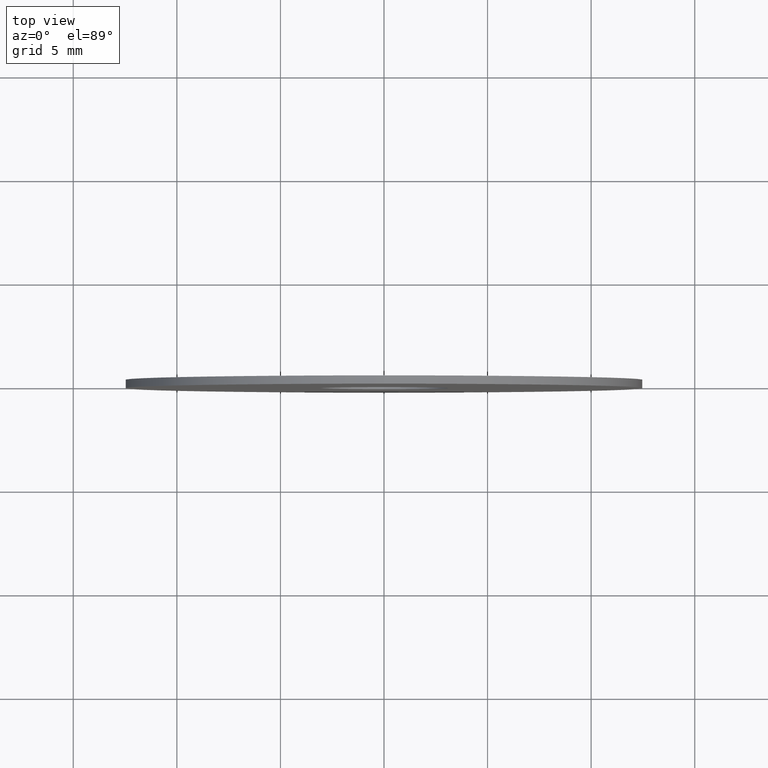
[diagram: clean part render]
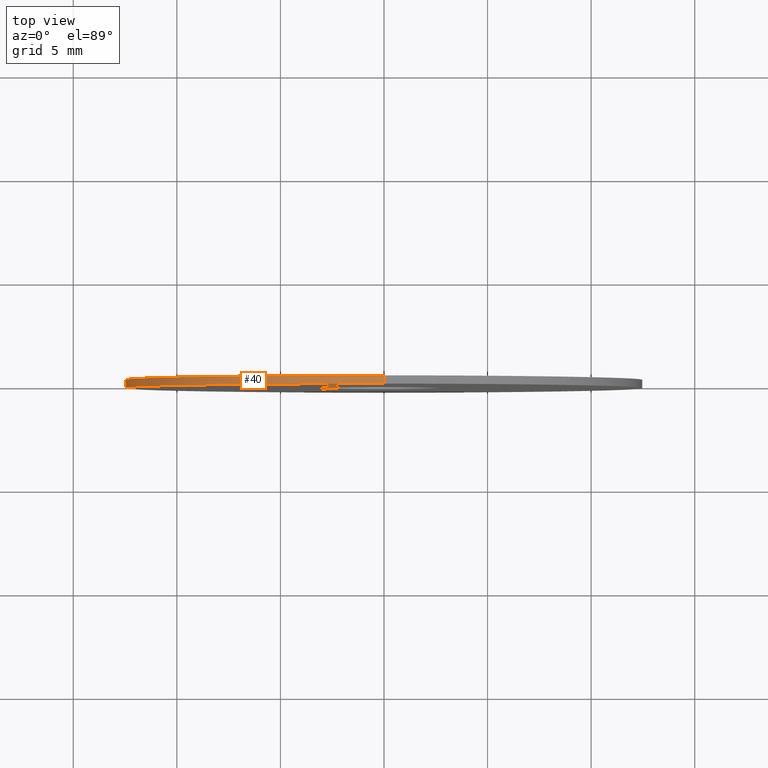
[diagram: same view with one face highlighted and labeled with its STEP entity id]
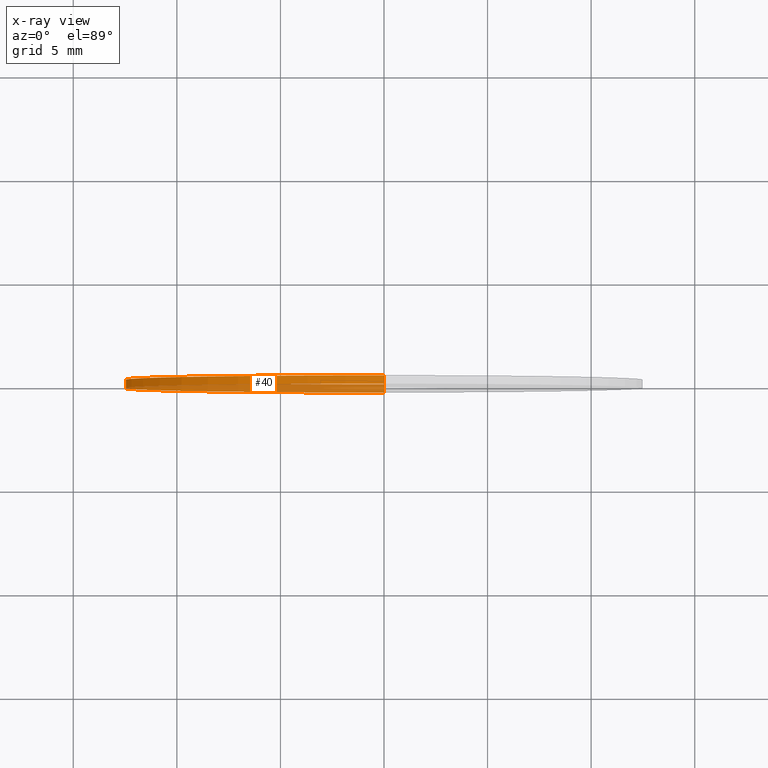
[diagram: x-ray of the same camera — body ghosted, the highlighted face saturated]
A machine part, top view. The second image highlights one B-rep face of the part: STEP entity #40.
The next image is the same camera in x-ray: the body ghosted, the highlighted face saturated — about 37% of this face is hidden behind the body in this view.
In plain terms, the highlighted cylindrical surface (partial cylindrical patch) has radius 12.5 mm, axis along (-0, -1, -0).
Its self-contained STEP definition (entity closure, byte-faithful):
#4 = AXIS2_PLACEMENT_3D ( 'NONE', #140, #214, #83 ) ;
#5 = EDGE_CURVE ( 'NONE', #135, #247, #35, .T. ) ;
#8 = DIRECTION ( 'NONE',  ( -0.000000000000000000, -1.000000000000000000, -0.000000000000000000 ) ) ;
#13 = VECTOR ( 'NONE', #154, 1000.000000000000000 ) ;
#22 = CIRCLE ( 'NONE', #4, 12.50000000000000000 ) ;
#26 = CARTESIAN_POINT ( 'NONE',  ( 1.530808498934191521E-15, 0.2000000000000000111, 12.50000000000000000 ) ) ;
#32 = CIRCLE ( 'NONE', #82, 12.50000000000000000 ) ;
#35 = LINE ( 'NONE', #157, #13 ) ;
#37 = VERTEX_POINT ( 'NONE', #93 ) ;
#39 = ORIENTED_EDGE ( 'NONE', *, *, #106, .F. ) ;
#40 = ADVANCED_FACE ( 'NONE', ( #188 ), #114, .T. ) ;
#62 = DIRECTION ( 'NONE',  ( 0.000000000000000000, 0.000000000000000000, 1.000000000000000000 ) ) ;
#72 = AXIS2_PLACEMENT_3D ( 'NONE', #76, #138, #231 ) ;
#76 = CARTESIAN_POINT ( 'NONE',  ( 0.000000000000000000, 0.2000000000000000111, 0.000000000000000000 ) ) ;
#82 = AXIS2_PLACEMENT_3D ( 'NONE', #144, #198, #62 ) ;
#83 = DIRECTION ( 'NONE',  ( 0.000000000000000000, 0.000000000000000000, 1.000000000000000000 ) ) ;
#88 = EDGE_CURVE ( 'NONE', #247, #227, #22, .T. ) ;
#93 = CARTESIAN_POINT ( 'NONE',  ( 1.530808498934191521E-15, 0.2000000000000000111, 12.50000000000000000 ) ) ;
#100 = CARTESIAN_POINT ( 'NONE',  ( 0.000000000000000000, 0.2000000000000000111, -12.50000000000000000 ) ) ;
#106 = EDGE_CURVE ( 'NONE', #135, #37, #32, .T. ) ;
#108 = EDGE_LOOP ( 'NONE', ( #187, #39, #172, #248 ) ) ;
#114 = CYLINDRICAL_SURFACE ( 'NONE', #72, 12.50000000000000000 ) ;
#135 = VERTEX_POINT ( 'NONE', #100 ) ;
#138 = DIRECTION ( 'NONE',  ( -0.000000000000000000, -1.000000000000000000, -0.000000000000000000 ) ) ;
#139 = LINE ( 'NONE', #26, #181 ) ;
#140 = CARTESIAN_POINT ( 'NONE',  ( 0.000000000000000000, -0.2000000000000000111, 0.000000000000000000 ) ) ;
#144 = CARTESIAN_POINT ( 'NONE',  ( 0.000000000000000000, 0.2000000000000000111, 0.000000000000000000 ) ) ;
#154 = DIRECTION ( 'NONE',  ( -0.000000000000000000, -1.000000000000000000, -0.000000000000000000 ) ) ;
#157 = CARTESIAN_POINT ( 'NONE',  ( 0.000000000000000000, 0.2000000000000000111, -12.50000000000000000 ) ) ;
#161 = EDGE_CURVE ( 'NONE', #37, #227, #139, .T. ) ;
#164 = CARTESIAN_POINT ( 'NONE',  ( 1.530808498934191521E-15, -0.2000000000000000111, 12.50000000000000000 ) ) ;
#172 = ORIENTED_EDGE ( 'NONE', *, *, #5, .T. ) ;
#181 = VECTOR ( 'NONE', #8, 1000.000000000000000 ) ;
#187 = ORIENTED_EDGE ( 'NONE', *, *, #161, .F. ) ;
#188 = FACE_OUTER_BOUND ( 'NONE', #108, .T. ) ;
#198 = DIRECTION ( 'NONE',  ( 0.000000000000000000, 1.000000000000000000, 0.000000000000000000 ) ) ;
#214 = DIRECTION ( 'NONE',  ( 0.000000000000000000, 1.000000000000000000, 0.000000000000000000 ) ) ;
#227 = VERTEX_POINT ( 'NONE', #164 ) ;
#231 = DIRECTION ( 'NONE',  ( 0.000000000000000000, 0.000000000000000000, -1.000000000000000000 ) ) ;
#238 = CARTESIAN_POINT ( 'NONE',  ( 0.000000000000000000, -0.2000000000000000111, -12.50000000000000000 ) ) ;
#247 = VERTEX_POINT ( 'NONE', #238 ) ;
#248 = ORIENTED_EDGE ( 'NONE', *, *, #88, .T. ) ;